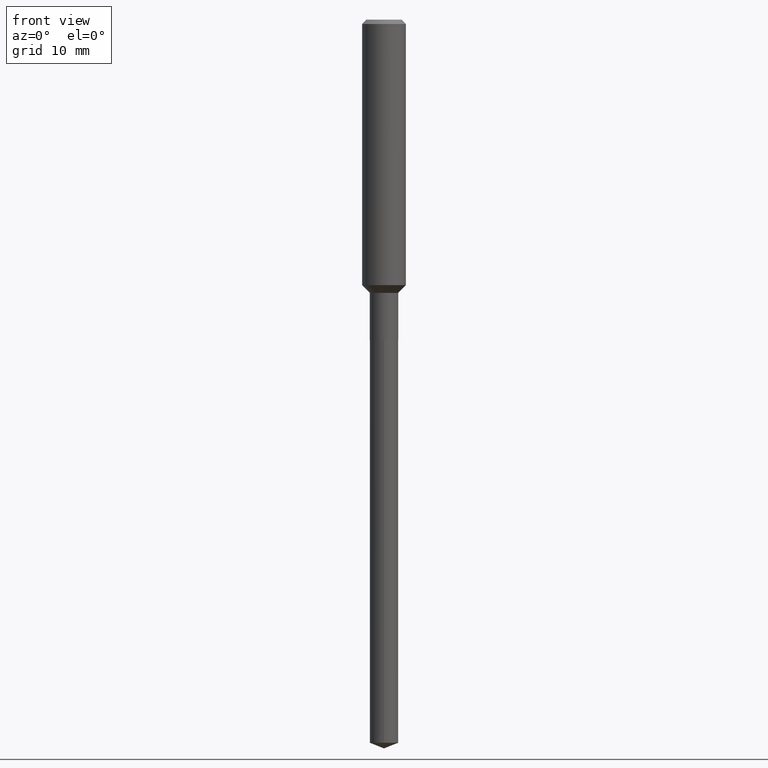
[diagram: clean part render]
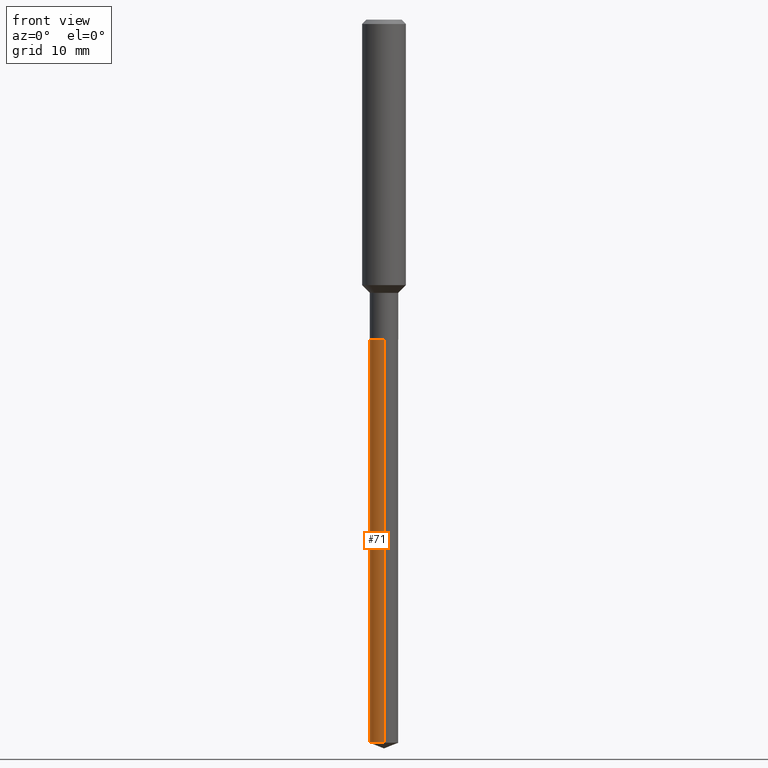
[diagram: same view with one face highlighted and labeled with its STEP entity id]
A machine part, front view. The second image highlights one B-rep face of the part: STEP entity #71.
In plain terms, the highlighted cylindrical surface (edge-blend (fillet) strip) has radius 1.9495 mm, axis along (-0, 0, 1).
Its self-contained STEP definition (entity closure, byte-faithful):
#2 = LINE ( 'NONE', #48, #432 ) ;
#22 = VERTEX_POINT ( 'NONE', #245 ) ;
#30 = VERTEX_POINT ( 'NONE', #418 ) ;
#39 = DIRECTION ( 'NONE',  ( -2.445430808607122384E-29, 3.491535753537549609E-15, 1.000000000000000000 ) ) ;
#47 = EDGE_CURVE ( 'NONE', #223, #22, #2, .T. ) ;
#48 = CARTESIAN_POINT ( 'NONE',  ( -5.359423855123787186E-16, -0.07675000000000603562, -1.726199999999999957 ) ) ;
#71 = ADVANCED_FACE ( 'NONE', ( #197 ), #343, .T. ) ;
#102 = ORIENTED_EDGE ( 'NONE', *, *, #145, .F. ) ;
#120 = EDGE_CURVE ( 'NONE', #435, #223, #202, .T. ) ;
#145 = EDGE_CURVE ( 'NONE', #30, #22, #187, .T. ) ;
#157 = CARTESIAN_POINT ( 'NONE',  ( 9.534231436046332391E-29, -1.361259173991458083E-14, -3.898767370996552906 ) ) ;
#160 = DIRECTION ( 'NONE',  ( -6.982962677686265133E-15, -1.000000000000000000, 0.000000000000000000 ) ) ;
#187 = CIRCLE ( 'NONE', #266, 0.07675000000000001266 ) ;
#197 = FACE_OUTER_BOUND ( 'NONE', #274, .T. ) ;
#200 = DIRECTION ( 'NONE',  ( -2.445430808607122384E-29, 3.491535753537550004E-15, 1.000000000000000000 ) ) ;
#202 = CIRCLE ( 'NONE', #451, 0.07675000000000001266 ) ;
#206 = ORIENTED_EDGE ( 'NONE', *, *, #120, .T. ) ;
#212 = ORIENTED_EDGE ( 'NONE', *, *, #394, .F. ) ;
#220 = DIRECTION ( 'NONE',  ( -2.445430808607122384E-29, 3.491535753537549609E-15, 1.000000000000000000 ) ) ;
#223 = VERTEX_POINT ( 'NONE', #433 ) ;
#245 = CARTESIAN_POINT ( 'NONE',  ( -5.359423855123787186E-16, -0.07675000000000603562, -1.726199999999999957 ) ) ;
#247 = CARTESIAN_POINT ( 'NONE',  ( 4.221368253236783353E-29, -6.026995087111038735E-15, -1.726200000000000401 ) ) ;
#266 = AXIS2_PLACEMENT_3D ( 'NONE', #247, #395, #468 ) ;
#274 = EDGE_LOOP ( 'NONE', ( #212, #206, #444, #102 ) ) ;
#280 = DIRECTION ( 'NONE',  ( -2.445430808607122384E-29, 3.491535753537550004E-15, 1.000000000000000000 ) ) ;
#281 = AXIS2_PLACEMENT_3D ( 'NONE', #310, #280, #338 ) ;
#310 = CARTESIAN_POINT ( 'NONE',  ( 4.221368253236783353E-29, -6.026995087111038735E-15, -1.726200000000000401 ) ) ;
#334 = LINE ( 'NONE', #337, #357 ) ;
#337 = CARTESIAN_POINT ( 'NONE',  ( 5.453415496959190880E-16, 0.07674999999999397582, -1.726200000000000623 ) ) ;
#338 = DIRECTION ( 'NONE',  ( -6.982962677686265133E-15, -1.000000000000000000, 3.559411066663534686E-15 ) ) ;
#343 = CYLINDRICAL_SURFACE ( 'NONE', #281, 0.07675000000000001266 ) ;
#357 = VECTOR ( 'NONE', #220, 39.37007874015748143 ) ;
#394 = EDGE_CURVE ( 'NONE', #435, #30, #334, .T. ) ;
#395 = DIRECTION ( 'NONE',  ( -2.445430808607122384E-29, 3.491535753537550004E-15, 1.000000000000000000 ) ) ;
#407 = CARTESIAN_POINT ( 'NONE',  ( 5.453415496959724348E-16, 0.07674999999998641242, -3.898767370996552906 ) ) ;
#418 = CARTESIAN_POINT ( 'NONE',  ( 5.453415496959725334E-16, 0.07674999999999397582, -1.726200000000000623 ) ) ;
#432 = VECTOR ( 'NONE', #39, 39.37007874015748143 ) ;
#433 = CARTESIAN_POINT ( 'NONE',  ( -5.359423855123256677E-16, -0.07675000000001364064, -3.898767370996552462 ) ) ;
#435 = VERTEX_POINT ( 'NONE', #407 ) ;
#444 = ORIENTED_EDGE ( 'NONE', *, *, #47, .T. ) ;
#451 = AXIS2_PLACEMENT_3D ( 'NONE', #157, #200, #160 ) ;
#468 = DIRECTION ( 'NONE',  ( -6.982962677686265133E-15, -1.000000000000000000, 3.559411066663534686E-15 ) ) ;